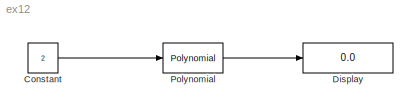
MODEL ex12
KIND model
CONFIG AbsTol = auto
CONFIG FixedStep = auto
CONFIG MaxStep = auto
CONFIG MinStep = auto
CONFIG RelTol = 1e-3
CONFIG Solver = ode45
CONFIG SolverMode = Auto
CONFIG StartTime = 0.0
CONFIG StopTime = 10.0
BLOCK [Constant] Constant
  Value = 2
BLOCK [Display] Display
  Decimation = 1
  Ports = [1]
BLOCK [Reference] Polynomial  REF=simulink/Math\nOperations/Polynomial
  Ports = [1, 1]
  SourceBlock = simulink/Math\nOperations/Polynomial
  SourceType = Polyval
  coefs = [1 2 3]
LINE Constant:1 -> Polynomial:1
LINE Polynomial:1 -> Display:1
